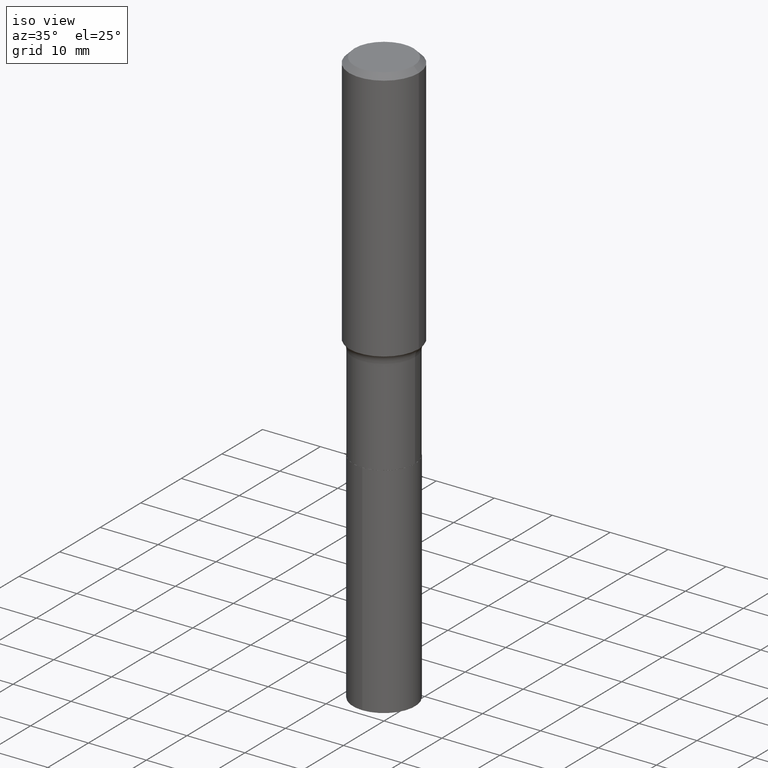
[diagram: clean part render]
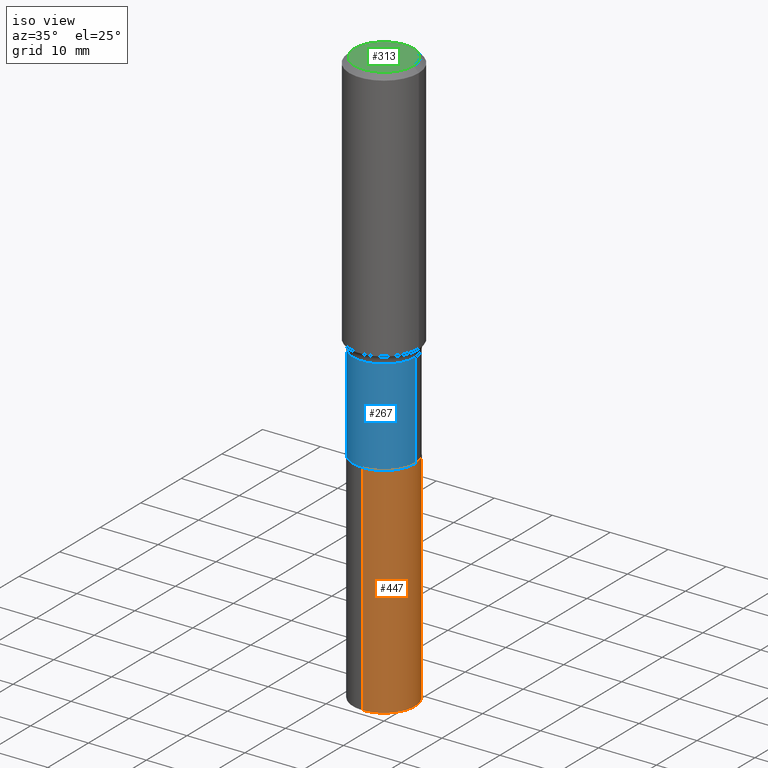
[diagram: same view with three faces highlighted in distinct colors, each labeled with its STEP entity id]
A machine part, iso view with three faces highlighted in distinct colors.
Their STEP definitions:

[orange] entity #447 — the highlighted cylindrical surface (partial cylindrical patch) has radius 5.3505 mm, axis along (-0, 0, 1).
#10 = EDGE_CURVE ( 'NONE', #451, #432, #41, .T. ) ;
#13 = ORIENTED_EDGE ( 'NONE', *, *, #426, .T. ) ;
#40 = CARTESIAN_POINT ( 'NONE',  ( 5.969144809017299038E-29, -8.522356799982232966E-15, -2.440900000000000070 ) ) ;
#41 = LINE ( 'NONE', #186, #280 ) ;
#47 = VERTEX_POINT ( 'NONE', #235 ) ;
#63 = DIRECTION ( 'NONE',  ( -6.982962677686265922E-15, -1.000000000000000000, 2.593731776562319814E-15 ) ) ;
#82 = DIRECTION ( 'NONE',  ( -2.445425754346182208E-29, 3.491542991526886614E-15, 1.000000000000000000 ) ) ;
#98 = CARTESIAN_POINT ( 'NONE',  ( 9.612075687473308586E-29, -1.372368002751595173E-14, -3.930591875527824186 ) ) ;
#100 = ORIENTED_EDGE ( 'NONE', *, *, #214, .F. ) ;
#111 = CARTESIAN_POINT ( 'NONE',  ( -1.470961088054552202E-15, -0.2106500000000085526, -2.440899999999999181 ) ) ;
#131 = DIRECTION ( 'NONE',  ( -6.982962677686265922E-15, -1.000000000000000000, 3.890597664843479129E-15 ) ) ;
#149 = ORIENTED_EDGE ( 'NONE', *, *, #10, .F. ) ;
#152 = CARTESIAN_POINT ( 'NONE',  ( 1.496758272878746719E-15, 0.2106499999999862371, -3.930591875527825074 ) ) ;
#153 = ORIENTED_EDGE ( 'NONE', *, *, #307, .T. ) ;
#169 = CIRCLE ( 'NONE', #473, 0.2106500000000000039 ) ;
#186 = CARTESIAN_POINT ( 'NONE',  ( -1.470961088054552202E-15, -0.2106500000000085526, -2.440899999999999181 ) ) ;
#192 = LINE ( 'NONE', #269, #482 ) ;
#212 = AXIS2_PLACEMENT_3D ( 'NONE', #369, #487, #131 ) ;
#214 = EDGE_CURVE ( 'NONE', #432, #47, #436, .T. ) ;
#233 = FACE_OUTER_BOUND ( 'NONE', #335, .T. ) ;
#235 = CARTESIAN_POINT ( 'NONE',  ( 1.496758272878746916E-15, 0.2106499999999914274, -2.440900000000000514 ) ) ;
#260 = CYLINDRICAL_SURFACE ( 'NONE', #456, 0.2106500000000000039 ) ;
#265 = DIRECTION ( 'NONE',  ( -6.982962677686265922E-15, -1.000000000000000000, 3.890597664843479129E-15 ) ) ;
#269 = CARTESIAN_POINT ( 'NONE',  ( 1.496758272878710628E-15, 0.2106499999999914829, -2.440900000000000514 ) ) ;
#280 = VECTOR ( 'NONE', #346, 39.37007874015748143 ) ;
#307 = EDGE_CURVE ( 'NONE', #451, #341, #169, .T. ) ;
#335 = EDGE_LOOP ( 'NONE', ( #153, #13, #100, #149 ) ) ;
#341 = VERTEX_POINT ( 'NONE', #152 ) ;
#346 = DIRECTION ( 'NONE',  ( -2.445425754346182208E-29, 3.491542991526886220E-15, 1.000000000000000000 ) ) ;
#353 = DIRECTION ( 'NONE',  ( -2.445425754346182208E-29, 3.491542991526886220E-15, 1.000000000000000000 ) ) ;
#369 = CARTESIAN_POINT ( 'NONE',  ( 5.969144809017299038E-29, -8.522356799982232966E-15, -2.440900000000000070 ) ) ;
#405 = DIRECTION ( 'NONE',  ( -2.445425754346182208E-29, 3.491542991526886614E-15, 1.000000000000000000 ) ) ;
#426 = EDGE_CURVE ( 'NONE', #341, #47, #192, .T. ) ;
#432 = VERTEX_POINT ( 'NONE', #111 ) ;
#436 = CIRCLE ( 'NONE', #212, 0.2106500000000000039 ) ;
#447 = ADVANCED_FACE ( 'NONE', ( #233 ), #260, .T. ) ;
#450 = CARTESIAN_POINT ( 'NONE',  ( -1.470961088054515717E-15, -0.2106500000000137152, -3.930591875527823742 ) ) ;
#451 = VERTEX_POINT ( 'NONE', #450 ) ;
#456 = AXIS2_PLACEMENT_3D ( 'NONE', #40, #82, #265 ) ;
#473 = AXIS2_PLACEMENT_3D ( 'NONE', #98, #405, #63 ) ;
#482 = VECTOR ( 'NONE', #353, 39.37007874015748143 ) ;
#487 = DIRECTION ( 'NONE',  ( -2.445425754346182208E-29, 3.491542991526886614E-15, 1.000000000000000000 ) ) ;

[blue] entity #267 — the highlighted cylindrical surface (partial cylindrical patch) has radius 5.3505 mm, axis along (-0, 0, 1).
#31 = EDGE_CURVE ( 'NONE', #173, #39, #389, .T. ) ;
#36 = CARTESIAN_POINT ( 'NONE',  ( 0.000000000000000000, 0.000000000000000000, 0.000000000000000000 ) ) ;
#39 = VERTEX_POINT ( 'NONE', #122 ) ;
#48 = DIRECTION ( 'NONE',  ( -2.445468806185136597E-29, 3.491481338843145583E-15, 1.000000000000000000 ) ) ;
#78 = EDGE_CURVE ( 'NONE', #344, #39, #429, .T. ) ;
#88 = EDGE_CURVE ( 'NONE', #234, #173, #448, .T. ) ;
#95 = DIRECTION ( 'NONE',  ( -2.445468806185136597E-29, 3.491481338843145583E-15, 1.000000000000000000 ) ) ;
#99 = LINE ( 'NONE', #289, #238 ) ;
#101 = FACE_OUTER_BOUND ( 'NONE', #259, .T. ) ;
#120 = CARTESIAN_POINT ( 'NONE',  ( 5.967922074614207358E-29, -8.520611059312812251E-15, -2.440399999999999903 ) ) ;
#122 = CARTESIAN_POINT ( 'NONE',  ( 0.2106499999999999484, -7.710587388701196730E-15, -1.787099999999999911 ) ) ;
#133 = AXIS2_PLACEMENT_3D ( 'NONE', #120, #95, #244 ) ;
#134 = ORIENTED_EDGE ( 'NONE', *, *, #31, .T. ) ;
#143 = CYLINDRICAL_SURFACE ( 'NONE', #188, 0.2106499999999999762 ) ;
#173 = VERTEX_POINT ( 'NONE', #471 ) ;
#181 = DIRECTION ( 'NONE',  ( -2.445468806185136597E-29, 3.491481338843145583E-15, 1.000000000000000000 ) ) ;
#188 = AXIS2_PLACEMENT_3D ( 'NONE', #36, #181, #333 ) ;
#206 = CARTESIAN_POINT ( 'NONE',  ( 0.2106499999999999762, -1.470961088054611958E-15, 1.027166637821413806E-29 ) ) ;
#234 = VERTEX_POINT ( 'NONE', #325 ) ;
#238 = VECTOR ( 'NONE', #443, 39.37007874015748143 ) ;
#242 = DIRECTION ( 'NONE',  ( 1.000000000000000000, -6.982962677686267499E-15, 0.000000000000000000 ) ) ;
#244 = DIRECTION ( 'NONE',  ( 1.000000000000000000, -6.982962677686265922E-15, 0.000000000000000000 ) ) ;
#259 = EDGE_LOOP ( 'NONE', ( #299, #387, #134, #425 ) ) ;
#267 = ADVANCED_FACE ( 'NONE', ( #101 ), #143, .T. ) ;
#271 = AXIS2_PLACEMENT_3D ( 'NONE', #438, #48, #242 ) ;
#287 = DIRECTION ( 'NONE',  ( -2.445468806185136877E-29, 3.491481338843145188E-15, 1.000000000000000000 ) ) ;
#289 = CARTESIAN_POINT ( 'NONE',  ( -0.2106499999999999762, 1.496758272878650872E-15, -1.036173676762195916E-29 ) ) ;
#299 = ORIENTED_EDGE ( 'NONE', *, *, #305, .F. ) ;
#305 = EDGE_CURVE ( 'NONE', #234, #344, #99, .T. ) ;
#325 = CARTESIAN_POINT ( 'NONE',  ( -0.2106500000000000039, -5.883360407101046752E-15, -2.440399999999999903 ) ) ;
#333 = DIRECTION ( 'NONE',  ( 1.000000000000000000, -6.982962677686266711E-15, 4.876176775795935793E-29 ) ) ;
#344 = VERTEX_POINT ( 'NONE', #347 ) ;
#347 = CARTESIAN_POINT ( 'NONE',  ( -0.2106499999999999484, -5.883360407101046752E-15, -1.787099999999999911 ) ) ;
#348 = VECTOR ( 'NONE', #287, 39.37007874015748143 ) ;
#387 = ORIENTED_EDGE ( 'NONE', *, *, #88, .T. ) ;
#389 = LINE ( 'NONE', #206, #348 ) ;
#425 = ORIENTED_EDGE ( 'NONE', *, *, #78, .F. ) ;
#429 = CIRCLE ( 'NONE', #271, 0.2106499999999999484 ) ;
#438 = CARTESIAN_POINT ( 'NONE',  ( 4.370297303533457201E-29, -6.239626300646584969E-15, -1.787099999999999911 ) ) ;
#443 = DIRECTION ( 'NONE',  ( -2.445468806185136877E-29, 3.491481338843145188E-15, 1.000000000000000000 ) ) ;
#448 = CIRCLE ( 'NONE', #133, 0.2106500000000000039 ) ;
#471 = CARTESIAN_POINT ( 'NONE',  ( 0.2106500000000000039, -9.991572147367424012E-15, -2.440399999999999903 ) ) ;

[green] entity #313 — the highlighted planar face has unit normal (0, -0, -1).
#7 = AXIS2_PLACEMENT_3D ( 'NONE', #375, #184, #383 ) ;
#12 = DIRECTION ( 'NONE',  ( 2.438088387897960049E-29, -3.491481338843145188E-15, -1.000000000000000000 ) ) ;
#26 = FACE_OUTER_BOUND ( 'NONE', #139, .T. ) ;
#44 = PLANE ( 'NONE',  #116 ) ;
#54 = CARTESIAN_POINT ( 'NONE',  ( -1.001697619218023151E-46, 1.430158722866391908E-32, 4.096137381448114529E-18 ) ) ;
#57 = CARTESIAN_POINT ( 'NONE',  ( -0.2007700000000000040, 1.463821008716677338E-15, 4.096137381438094301E-18 ) ) ;
#107 = VERTEX_POINT ( 'NONE', #57 ) ;
#108 = CIRCLE ( 'NONE', #141, 0.2007700000000000040 ) ;
#116 = AXIS2_PLACEMENT_3D ( 'NONE', #427, #12, #146 ) ;
#139 = EDGE_LOOP ( 'NONE', ( #332, #193 ) ) ;
#141 = AXIS2_PLACEMENT_3D ( 'NONE', #54, #162, #201 ) ;
#146 = DIRECTION ( 'NONE',  ( -1.000000000000000000, 6.982962677686265922E-15, -4.876176775795935793E-29 ) ) ;
#158 = EDGE_CURVE ( 'NONE', #107, #384, #108, .T. ) ;
#162 = DIRECTION ( 'NONE',  ( -2.445468806185136597E-29, 3.491481338843145583E-15, 1.000000000000000000 ) ) ;
#184 = DIRECTION ( 'NONE',  ( -2.445468806185136597E-29, 3.491481338843145583E-15, 1.000000000000000000 ) ) ;
#193 = ORIENTED_EDGE ( 'NONE', *, *, #486, .T. ) ;
#201 = DIRECTION ( 'NONE',  ( 1.000000000000000000, -6.982962677686266711E-15, 4.876140833081945105E-29 ) ) ;
#296 = CARTESIAN_POINT ( 'NONE',  ( 0.2007700000000000040, -1.560767496960719672E-15, 4.096137381458473721E-18 ) ) ;
#313 = ADVANCED_FACE ( 'NONE', ( #26 ), #44, .F. ) ;
#332 = ORIENTED_EDGE ( 'NONE', *, *, #158, .T. ) ;
#375 = CARTESIAN_POINT ( 'NONE',  ( -1.001697619218023151E-46, 1.430158722866391908E-32, 4.096137381448114529E-18 ) ) ;
#376 = CIRCLE ( 'NONE', #7, 0.2007700000000000040 ) ;
#383 = DIRECTION ( 'NONE',  ( 1.000000000000000000, -6.982962677686266711E-15, 4.876140833081945105E-29 ) ) ;
#384 = VERTEX_POINT ( 'NONE', #296 ) ;
#427 = CARTESIAN_POINT ( 'NONE',  ( -5.008488096090115757E-47, 7.150793614331959538E-33, 2.048068690724057264E-18 ) ) ;
#486 = EDGE_CURVE ( 'NONE', #384, #107, #376, .T. ) ;